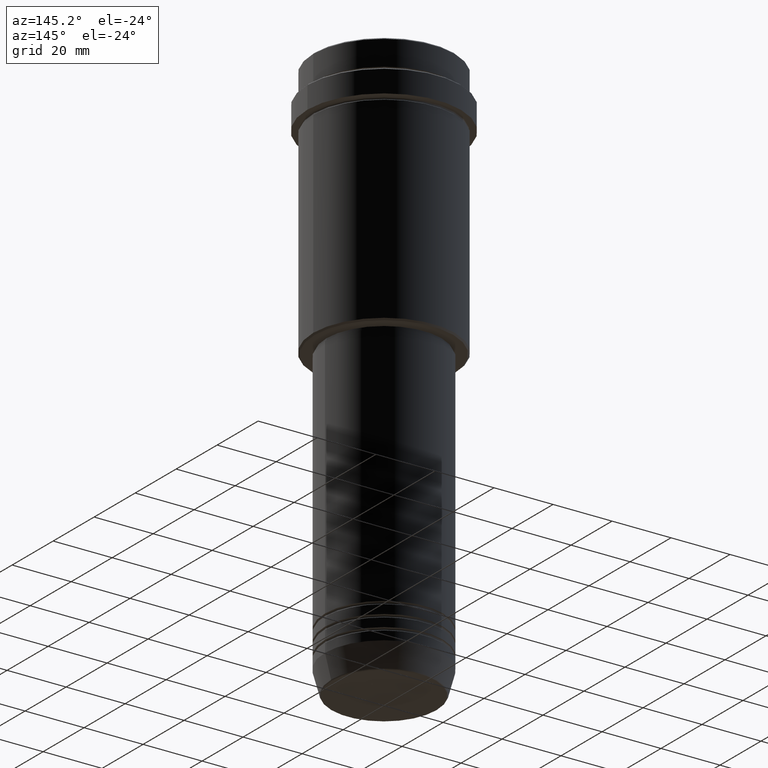
[diagram: clean part render]
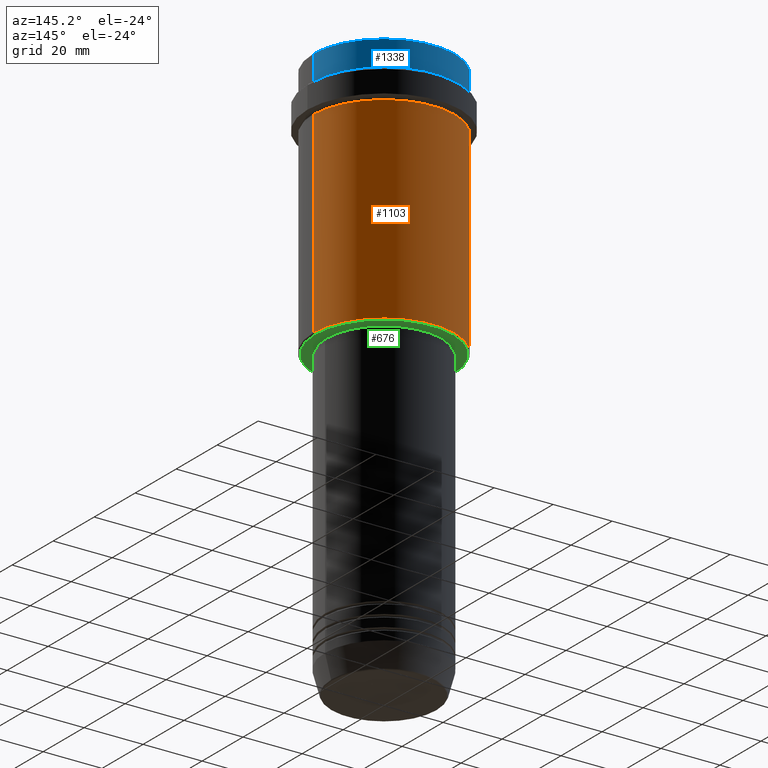
[diagram: same view with three faces highlighted in distinct colors, each labeled with its STEP entity id]
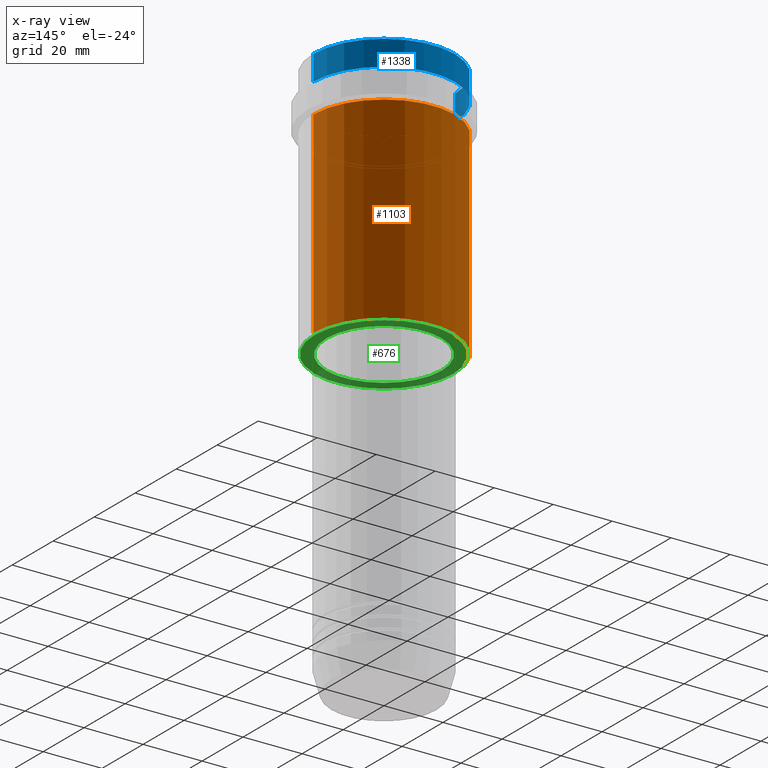
[diagram: x-ray of the same camera — body ghosted, the three highlighted faces saturated]
A machine part, auxiliary view with three faces highlighted in distinct colors.
The next image is the same camera in x-ray (body ghosted, the three faces saturated) — at least one of them is partly hidden behind the body in this view.
Their STEP definitions:

[orange] entity #1103 — the highlighted cylindrical surface (partial cylindrical patch) has radius 24 mm, axis along (-0, -0, 1).
#82 = VERTEX_POINT ( 'NONE', #754 ) ;
#122 = DIRECTION ( 'NONE',  ( 1.000000000000000000, 0.000000000000000000, 0.000000000000000000 ) ) ;
#148 = EDGE_LOOP ( 'NONE', ( #242, #400, #889, #956 ) ) ;
#167 = LINE ( 'NONE', #574, #1305 ) ;
#172 = DIRECTION ( 'NONE',  ( -0.000000000000000000, -0.000000000000000000, 1.000000000000000000 ) ) ;
#179 = CARTESIAN_POINT ( 'NONE',  ( 23.99999999999998934, 0.000000000000000000, -85.49999999999998579 ) ) ;
#185 = CIRCLE ( 'NONE', #887, 23.99999999999998934 ) ;
#236 = AXIS2_PLACEMENT_3D ( 'NONE', #612, #992, #1109 ) ;
#242 = ORIENTED_EDGE ( 'NONE', *, *, #532, .T. ) ;
#255 = CARTESIAN_POINT ( 'NONE',  ( -23.99999999999997868, 2.939152317953645528E-15, -19.00000000000000711 ) ) ;
#371 = AXIS2_PLACEMENT_3D ( 'NONE', #447, #1202, #122 ) ;
#385 = FACE_OUTER_BOUND ( 'NONE', #148, .T. ) ;
#400 = ORIENTED_EDGE ( 'NONE', *, *, #451, .T. ) ;
#447 = CARTESIAN_POINT ( 'NONE',  ( 0.000000000000000000, 0.000000000000000000, -19.00000000000000711 ) ) ;
#451 = EDGE_CURVE ( 'NONE', #82, #789, #1061, .T. ) ;
#532 = EDGE_CURVE ( 'NONE', #1407, #82, #185, .T. ) ;
#574 = CARTESIAN_POINT ( 'NONE',  ( 23.99999999999998934, 0.000000000000000000, 0.000000000000000000 ) ) ;
#612 = CARTESIAN_POINT ( 'NONE',  ( 0.000000000000000000, 0.000000000000000000, 0.000000000000000000 ) ) ;
#703 = CARTESIAN_POINT ( 'NONE',  ( -23.99999999999998934, 2.939152317953646711E-15, 0.000000000000000000 ) ) ;
#754 = CARTESIAN_POINT ( 'NONE',  ( -23.99999999999998934, 2.939152317953646711E-15, -85.49999999999998579 ) ) ;
#789 = VERTEX_POINT ( 'NONE', #255 ) ;
#791 = CARTESIAN_POINT ( 'NONE',  ( 23.99999999999997868, 0.000000000000000000, -19.00000000000000711 ) ) ;
#818 = CARTESIAN_POINT ( 'NONE',  ( 0.000000000000000000, 0.000000000000000000, -85.49999999999998579 ) ) ;
#837 = VERTEX_POINT ( 'NONE', #791 ) ;
#851 = DIRECTION ( 'NONE',  ( -0.000000000000000000, -0.000000000000000000, 1.000000000000000000 ) ) ;
#881 = DIRECTION ( 'NONE',  ( -0.000000000000000000, -0.000000000000000000, 1.000000000000000000 ) ) ;
#887 = AXIS2_PLACEMENT_3D ( 'NONE', #818, #172, #1360 ) ;
#889 = ORIENTED_EDGE ( 'NONE', *, *, #1292, .F. ) ;
#956 = ORIENTED_EDGE ( 'NONE', *, *, #1039, .F. ) ;
#987 = CIRCLE ( 'NONE', #371, 23.99999999999997868 ) ;
#992 = DIRECTION ( 'NONE',  ( -0.000000000000000000, -0.000000000000000000, 1.000000000000000000 ) ) ;
#1039 = EDGE_CURVE ( 'NONE', #1407, #837, #167, .T. ) ;
#1061 = LINE ( 'NONE', #703, #1161 ) ;
#1103 = ADVANCED_FACE ( 'NONE', ( #385 ), #1217, .T. ) ;
#1109 = DIRECTION ( 'NONE',  ( 1.000000000000000000, 0.000000000000000000, 0.000000000000000000 ) ) ;
#1161 = VECTOR ( 'NONE', #851, 1000.000000000000000 ) ;
#1202 = DIRECTION ( 'NONE',  ( -0.000000000000000000, -0.000000000000000000, 1.000000000000000000 ) ) ;
#1217 = CYLINDRICAL_SURFACE ( 'NONE', #236, 23.99999999999998934 ) ;
#1292 = EDGE_CURVE ( 'NONE', #837, #789, #987, .T. ) ;
#1305 = VECTOR ( 'NONE', #881, 1000.000000000000000 ) ;
#1360 = DIRECTION ( 'NONE',  ( -1.000000000000000000, 0.000000000000000000, 0.000000000000000000 ) ) ;
#1407 = VERTEX_POINT ( 'NONE', #179 ) ;

[blue] entity #1338 — the highlighted cylindrical surface (partial cylindrical patch) has radius 24 mm, axis along (-0, -0, 1).
#7 = CARTESIAN_POINT ( 'NONE',  ( 0.000000000000000000, 0.000000000000000000, -0.4999999999999935052 ) ) ;
#17 = EDGE_CURVE ( 'NONE', #244, #704, #1375, .T. ) ;
#20 = VERTEX_POINT ( 'NONE', #838 ) ;
#202 = DIRECTION ( 'NONE',  ( 1.000000000000000000, 0.000000000000000000, 0.000000000000000000 ) ) ;
#232 = VECTOR ( 'NONE', #1118, 1000.000000000000000 ) ;
#244 = VERTEX_POINT ( 'NONE', #370 ) ;
#248 = CARTESIAN_POINT ( 'NONE',  ( -23.99999999999998934, 2.939152317953646711E-15, 0.000000000000000000 ) ) ;
#355 = CARTESIAN_POINT ( 'NONE',  ( 0.000000000000000000, 0.000000000000000000, -8.999999999999998224 ) ) ;
#370 = CARTESIAN_POINT ( 'NONE',  ( 23.99999999999997868, 0.000000000000000000, -8.999999999999998224 ) ) ;
#392 = AXIS2_PLACEMENT_3D ( 'NONE', #7, #1087, #961 ) ;
#461 = DIRECTION ( 'NONE',  ( -0.000000000000000000, -0.000000000000000000, 1.000000000000000000 ) ) ;
#476 = EDGE_LOOP ( 'NONE', ( #516, #1152, #598, #912 ) ) ;
#516 = ORIENTED_EDGE ( 'NONE', *, *, #1029, .T. ) ;
#589 = EDGE_CURVE ( 'NONE', #20, #704, #738, .T. ) ;
#598 = ORIENTED_EDGE ( 'NONE', *, *, #589, .T. ) ;
#620 = CARTESIAN_POINT ( 'NONE',  ( 23.99999999999998934, 0.000000000000000000, 0.000000000000000000 ) ) ;
#639 = CYLINDRICAL_SURFACE ( 'NONE', #1191, 23.99999999999998934 ) ;
#647 = VECTOR ( 'NONE', #1247, 1000.000000000000000 ) ;
#677 = DIRECTION ( 'NONE',  ( 1.000000000000000000, 0.000000000000000000, 0.000000000000000000 ) ) ;
#694 = LINE ( 'NONE', #248, #232 ) ;
#704 = VERTEX_POINT ( 'NONE', #894 ) ;
#715 = CARTESIAN_POINT ( 'NONE',  ( -23.99999999999997868, 2.939152317953645528E-15, -8.999999999999998224 ) ) ;
#720 = FACE_OUTER_BOUND ( 'NONE', #476, .T. ) ;
#738 = CIRCLE ( 'NONE', #392, 23.99999999999998934 ) ;
#798 = EDGE_CURVE ( 'NONE', #1062, #20, #694, .T. ) ;
#838 = CARTESIAN_POINT ( 'NONE',  ( -23.99999999999998934, 2.939152317953646711E-15, -0.4999999999999935052 ) ) ;
#856 = CARTESIAN_POINT ( 'NONE',  ( 0.000000000000000000, 0.000000000000000000, 0.000000000000000000 ) ) ;
#894 = CARTESIAN_POINT ( 'NONE',  ( 23.99999999999998934, 0.000000000000000000, -0.4999999999999935052 ) ) ;
#912 = ORIENTED_EDGE ( 'NONE', *, *, #17, .F. ) ;
#961 = DIRECTION ( 'NONE',  ( 1.000000000000000000, 0.000000000000000000, 0.000000000000000000 ) ) ;
#1029 = EDGE_CURVE ( 'NONE', #244, #1062, #1190, .T. ) ;
#1062 = VERTEX_POINT ( 'NONE', #715 ) ;
#1087 = DIRECTION ( 'NONE',  ( 0.000000000000000000, 0.000000000000000000, -1.000000000000000000 ) ) ;
#1116 = AXIS2_PLACEMENT_3D ( 'NONE', #355, #461, #677 ) ;
#1118 = DIRECTION ( 'NONE',  ( -0.000000000000000000, -0.000000000000000000, 1.000000000000000000 ) ) ;
#1152 = ORIENTED_EDGE ( 'NONE', *, *, #798, .T. ) ;
#1181 = DIRECTION ( 'NONE',  ( -0.000000000000000000, -0.000000000000000000, 1.000000000000000000 ) ) ;
#1190 = CIRCLE ( 'NONE', #1116, 23.99999999999997868 ) ;
#1191 = AXIS2_PLACEMENT_3D ( 'NONE', #856, #1181, #202 ) ;
#1247 = DIRECTION ( 'NONE',  ( -0.000000000000000000, -0.000000000000000000, 1.000000000000000000 ) ) ;
#1338 = ADVANCED_FACE ( 'NONE', ( #720 ), #639, .T. ) ;
#1375 = LINE ( 'NONE', #620, #647 ) ;

[green] entity #676 — the highlighted planar face has unit normal (0, 0, -1).
#3 = DIRECTION ( 'NONE',  ( 1.000000000000000000, 0.000000000000000000, 0.000000000000000000 ) ) ;
#31 = ORIENTED_EDGE ( 'NONE', *, *, #533, .T. ) ;
#66 = AXIS2_PLACEMENT_3D ( 'NONE', #941, #749, #1372 ) ;
#104 = EDGE_CURVE ( 'NONE', #285, #175, #345, .T. ) ;
#162 = ORIENTED_EDGE ( 'NONE', *, *, #163, .T. ) ;
#163 = EDGE_CURVE ( 'NONE', #1018, #882, #1093, .T. ) ;
#175 = VERTEX_POINT ( 'NONE', #990 ) ;
#190 = CIRCLE ( 'NONE', #66, 19.49999999999998934 ) ;
#208 = FACE_OUTER_BOUND ( 'NONE', #265, .T. ) ;
#265 = EDGE_LOOP ( 'NONE', ( #31, #903 ) ) ;
#285 = VERTEX_POINT ( 'NONE', #611 ) ;
#298 = DIRECTION ( 'NONE',  ( 0.000000000000000000, 0.000000000000000000, -1.000000000000000000 ) ) ;
#319 = DIRECTION ( 'NONE',  ( -1.000000000000000000, 0.000000000000000000, -0.000000000000000000 ) ) ;
#322 = DIRECTION ( 'NONE',  ( 0.000000000000000000, 0.000000000000000000, -1.000000000000000000 ) ) ;
#345 = CIRCLE ( 'NONE', #871, 23.49999999999998224 ) ;
#391 = DIRECTION ( 'NONE',  ( -1.000000000000000000, 0.000000000000000000, 0.000000000000000000 ) ) ;
#431 = CARTESIAN_POINT ( 'NONE',  ( 0.000000000000000000, 24.00000000000000000, -86.00000000000000000 ) ) ;
#520 = CARTESIAN_POINT ( 'NONE',  ( 0.000000000000000000, 0.000000000000000000, -86.00000000000000000 ) ) ;
#533 = EDGE_CURVE ( 'NONE', #175, #285, #1186, .T. ) ;
#545 = FACE_BOUND ( 'NONE', #907, .T. ) ;
#547 = CARTESIAN_POINT ( 'NONE',  ( 0.000000000000000000, 0.000000000000000000, -86.00000000000000000 ) ) ;
#611 = CARTESIAN_POINT ( 'NONE',  ( -23.49999999999998224, 2.908536147974962135E-15, -86.00000000000000000 ) ) ;
#668 = DIRECTION ( 'NONE',  ( -1.000000000000000000, 0.000000000000000000, 0.000000000000000000 ) ) ;
#676 = ADVANCED_FACE ( 'NONE', ( #208, #545 ), #969, .T. ) ;
#728 = CARTESIAN_POINT ( 'NONE',  ( -19.49999999999998934, 2.388061258337337361E-15, -86.00000000000000000 ) ) ;
#749 = DIRECTION ( 'NONE',  ( -0.000000000000000000, -0.000000000000000000, 1.000000000000000000 ) ) ;
#750 = CARTESIAN_POINT ( 'NONE',  ( 0.000000000000000000, 0.000000000000000000, -86.00000000000000000 ) ) ;
#871 = AXIS2_PLACEMENT_3D ( 'NONE', #750, #322, #668 ) ;
#882 = VERTEX_POINT ( 'NONE', #728 ) ;
#890 = CARTESIAN_POINT ( 'NONE',  ( 19.49999999999998934, 0.000000000000000000, -86.00000000000000000 ) ) ;
#903 = ORIENTED_EDGE ( 'NONE', *, *, #104, .T. ) ;
#907 = EDGE_LOOP ( 'NONE', ( #162, #1102 ) ) ;
#941 = CARTESIAN_POINT ( 'NONE',  ( 0.000000000000000000, 0.000000000000000000, -86.00000000000000000 ) ) ;
#969 = PLANE ( 'NONE',  #1137 ) ;
#985 = DIRECTION ( 'NONE',  ( -0.000000000000000000, -0.000000000000000000, 1.000000000000000000 ) ) ;
#990 = CARTESIAN_POINT ( 'NONE',  ( 23.49999999999998224, 0.000000000000000000, -86.00000000000000000 ) ) ;
#1018 = VERTEX_POINT ( 'NONE', #890 ) ;
#1093 = CIRCLE ( 'NONE', #1361, 19.49999999999998934 ) ;
#1102 = ORIENTED_EDGE ( 'NONE', *, *, #1151, .T. ) ;
#1137 = AXIS2_PLACEMENT_3D ( 'NONE', #431, #1403, #319 ) ;
#1151 = EDGE_CURVE ( 'NONE', #882, #1018, #190, .T. ) ;
#1186 = CIRCLE ( 'NONE', #1389, 23.49999999999998224 ) ;
#1361 = AXIS2_PLACEMENT_3D ( 'NONE', #547, #985, #3 ) ;
#1372 = DIRECTION ( 'NONE',  ( 1.000000000000000000, 0.000000000000000000, 0.000000000000000000 ) ) ;
#1389 = AXIS2_PLACEMENT_3D ( 'NONE', #520, #298, #391 ) ;
#1403 = DIRECTION ( 'NONE',  ( 0.000000000000000000, 0.000000000000000000, -1.000000000000000000 ) ) ;